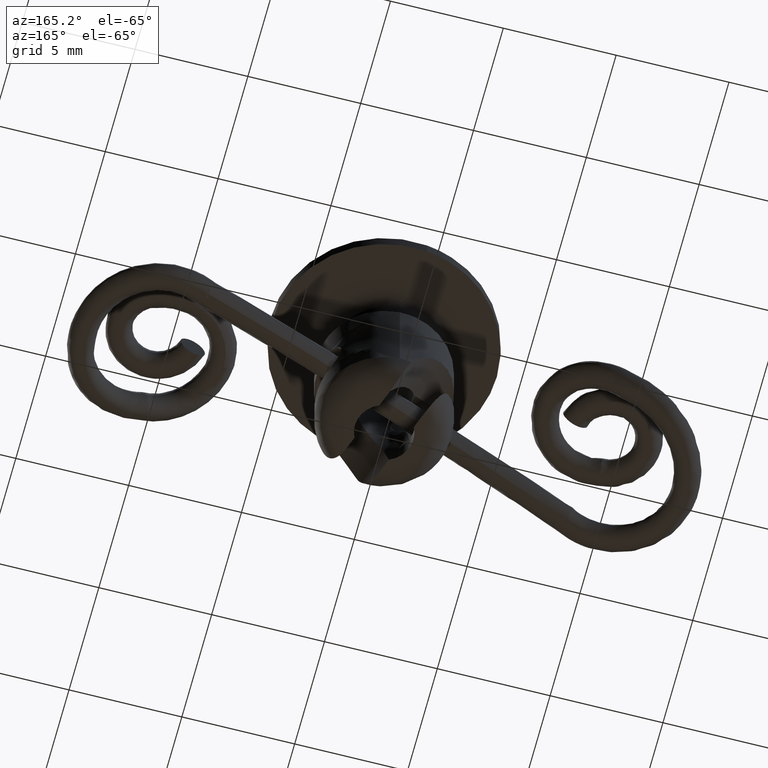
[diagram: clean part render]
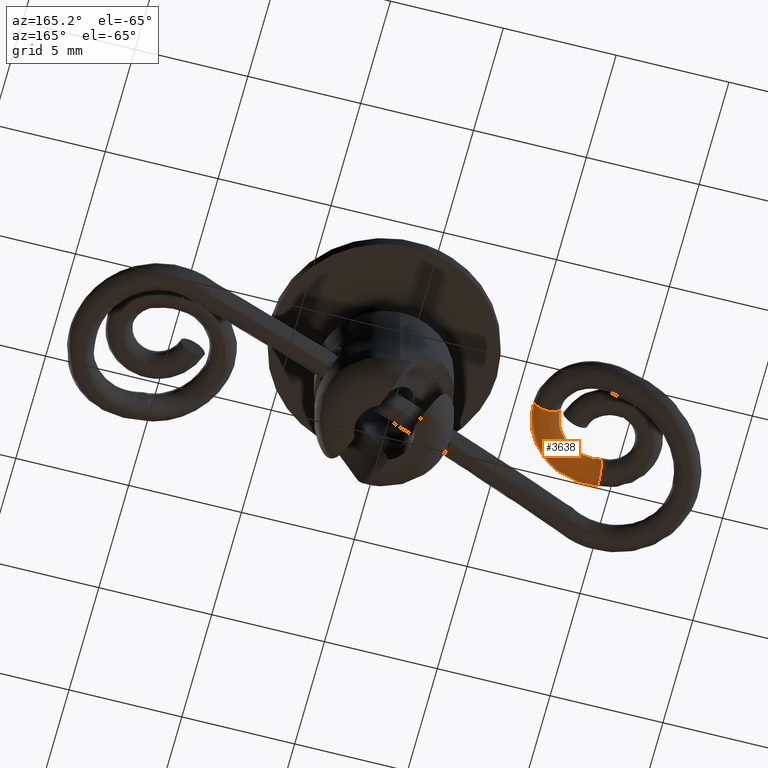
[diagram: same view with one face highlighted and labeled with its STEP entity id]
A machine part, auxiliary view. The second image highlights one B-rep face of the part: STEP entity #3638.
In plain terms, the highlighted face is a freeform B-spline surface patch.
Its self-contained STEP definition (entity closure, byte-faithful):
#3071=CARTESIAN_POINT('',(-10.043242120127619,-2.130392452698018,2.204339878628157));
#3072=VERTEX_POINT('',#3071);
#3073=CARTESIAN_POINT('',(-9.999998837097511,-1.700088375626410,1.200006937507510));
#3074=VERTEX_POINT('',#3073);
#3075=CARTESIAN_POINT('',(-10.043242120127619,-2.130392452698018,2.204339878628157));
#3076=CARTESIAN_POINT('',(-10.045545232305949,-2.152907324915941,2.180463862865568));
#3077=CARTESIAN_POINT('',(-10.047653391795460,-2.173466358939633,2.155104919220127));
#3078=CARTESIAN_POINT('',(-10.051837398571990,-2.214214925261329,2.096338908657430));
#3079=CARTESIAN_POINT('',(-10.053845583610260,-2.233732681942144,2.061942472263108));
#3080=CARTESIAN_POINT('',(-10.057119734588269,-2.265528859521091,1.990555876470845));
#3081=CARTESIAN_POINT('',(-10.058393168655750,-2.277880238889656,1.953627219705041));
#3082=CARTESIAN_POINT('',(-10.059699678639570,-2.290552073840912,1.896194673041867));
#3083=CARTESIAN_POINT('',(-10.060032682000640,-2.293781588385906,1.876665178462144));
#3084=CARTESIAN_POINT('',(-10.060470322932369,-2.298027663606091,1.837872855098563));
#3085=CARTESIAN_POINT('',(-10.060578245796160,-2.299076079571417,1.818492420432414));
#3086=CARTESIAN_POINT('',(-10.060567197705691,-2.298978113510738,1.760398580844292));
#3087=CARTESIAN_POINT('',(-10.060111221824220,-2.294568228502458,1.721517013265020));
#3088=CARTESIAN_POINT('',(-10.058340267778380,-2.277416103922451,1.644795557748384));
#3089=CARTESIAN_POINT('',(-10.057057370917571,-2.264984489423510,1.608056736984975));
#3090=CARTESIAN_POINT('',(-10.054613737151010,-2.241270725134839,1.555079627524320));
#3091=CARTESIAN_POINT('',(-10.053711787683710,-2.232513266159999,1.537779344696303));
#3092=CARTESIAN_POINT('',(-10.051736780529961,-2.213321005704326,1.503884306504155));
#3093=CARTESIAN_POINT('',(-10.050657322931769,-2.202823896500072,1.487205672045881));
#3094=CARTESIAN_POINT('',(-10.047217616879800,-2.169340100989766,1.439025682461910));
#3095=CARTESIAN_POINT('',(-10.044660683136010,-2.144407817740162,1.409300907142689));
#3096=CARTESIAN_POINT('',(-10.039053783715810,-2.089566827912970,1.354417763495271));
#3097=CARTESIAN_POINT('',(-10.035971525111460,-2.059340163799514,1.329066616063382));
#3098=CARTESIAN_POINT('',(-10.029480374143480,-1.995413161915260,1.284657922064973));
#3099=CARTESIAN_POINT('',(-10.026071404722130,-1.961714201399675,1.265492306075221));
#3100=CARTESIAN_POINT('',(-10.020704098198481,-1.908373376937416,1.241631664235709));
#3101=CARTESIAN_POINT('',(-10.018863373997780,-1.890034116270065,1.234476744461605));
#3102=CARTESIAN_POINT('',(-10.015164940196231,-1.853082446301886,1.222179436253916));
#3103=CARTESIAN_POINT('',(-10.011438080354861,-1.815744739788743,1.211824790051895));
#3104=CARTESIAN_POINT('',(-10.007654382245510,-1.777619381923054,1.205433286225611));
#3105=CARTESIAN_POINT('',(-10.003840831481339,-1.739080872391036,1.201120613466686));
#3106=CARTESIAN_POINT('',(-10.001900647963261,-1.719407479487515,1.200010210430974));
#3107=CARTESIAN_POINT('',(-9.999998837097511,-1.700088375626410,1.200006937507510));
#3108=B_SPLINE_CURVE_WITH_KNOTS('',3,(#3075,#3076,#3077,#3078,#3079,#3080,#3081,#3082,#3083,#3084,#3085,#3086,#3087,#3088,#3089,#3090,#3091,#3092,#3093,#3094,#3095,#3096,#3097,#3098,#3099,#3100,#3101,#3102,#3103,#3104,#3105,#3106,#3107),.UNSPECIFIED.,.F.,.U.,(4,2,2,2,2,2,2,2,2,2,2,2,2,2,1,2,4),(0.260085928940815,0.312499999999999,0.374999999999999,0.437499999999999,0.468749999999999,0.499999999999999,0.562499999999999,0.624999999999999,0.656249999999999,0.687499999999999,0.749999999999999,0.812499999999999,0.875000000000000,0.906250000000000,0.937500000000000,0.968750000000000,1.0),.UNSPECIFIED.);
#3109=EDGE_CURVE('',#3072,#3074,#3108,.T.);
#3153=CARTESIAN_POINT('',(-9.940976489279821,-1.100005277760007,1.800004965369043));
#3154=VERTEX_POINT('',#3153);
#3176=CARTESIAN_POINT('',(-9.940976489279821,-1.100005277760007,1.800004965369043));
#3177=CARTESIAN_POINT('',(-9.940976793164770,-1.100005277902401,1.799648798642329));
#3178=CARTESIAN_POINT('',(-9.940976823405311,-1.100005645726028,1.799292636531508));
#3179=CARTESIAN_POINT('',(-9.940984105256181,-1.100086307182981,1.760186044383925));
#3180=CARTESIAN_POINT('',(-9.941420881029073,-1.104533440302099,1.721256898987769));
#3181=CARTESIAN_POINT('',(-9.943115485060693,-1.121774799605418,1.644531965016536));
#3182=CARTESIAN_POINT('',(-9.944343060623050,-1.134261280690186,1.607793893641985));
#3183=CARTESIAN_POINT('',(-9.946683915608361,-1.158068643890093,1.554820393434147));
#3184=CARTESIAN_POINT('',(-9.947548285861510,-1.166859209616564,1.537521734694128));
#3185=CARTESIAN_POINT('',(-9.949442362662452,-1.186121049568303,1.503630645072503));
#3186=CARTESIAN_POINT('',(-9.950478224809537,-1.196654918315031,1.486954714867675));
#3187=CARTESIAN_POINT('',(-9.953780521444418,-1.230235559402496,1.438803814616513));
#3188=CARTESIAN_POINT('',(-9.956238765481588,-1.255231908436489,1.409099615727053));
#3189=CARTESIAN_POINT('',(-9.961644425843952,-1.310195995190908,1.354257063836326));
#3190=CARTESIAN_POINT('',(-9.964623080898452,-1.340481333278681,1.328927167570852));
#3191=CARTESIAN_POINT('',(-9.970920496706878,-1.404506741655589,1.284560290397922));
#3192=CARTESIAN_POINT('',(-9.974239593443024,-1.438250257677820,1.265411862638392));
#3193=CARTESIAN_POINT('',(-9.979492461361190,-1.491650305763647,1.241572387426188));
#3194=CARTESIAN_POINT('',(-9.981298249548399,-1.510007236408447,1.234424158415998));
#3195=CARTESIAN_POINT('',(-9.984936427206808,-1.546990393547990,1.222138865138683));
#3196=CARTESIAN_POINT('',(-9.988612511607496,-1.584357785212893,1.211794345766566));
#3197=CARTESIAN_POINT('',(-9.992365990354124,-1.622509542973230,1.205411676566766));
#3198=CARTESIAN_POINT('',(-9.996160096839565,-1.661073038401601,1.201108703800178));
#3199=CARTESIAN_POINT('',(-9.998096940010591,-1.680758522762261,1.200003658182397));
#3200=CARTESIAN_POINT('',(-9.999998837097511,-1.700088375626410,1.200006937507510));
#3201=B_SPLINE_CURVE_WITH_KNOTS('',3,(#3176,#3177,#3178,#3179,#3180,#3181,#3182,#3183,#3184,#3185,#3186,#3187,#3188,#3189,#3190,#3191,#3192,#3193,#3194,#3195,#3196,#3197,#3198,#3199,#3200),.UNSPECIFIED.,.F.,.U.,(4,2,2,2,2,2,2,2,2,2,1,2,4),(0.499425559426463,0.500000000000001,0.562500000000000,0.625000000000000,0.656250000000000,0.687500000000000,0.750000000000000,0.812500000000000,0.875000000000000,0.906250000000000,0.937500000000000,0.968750000000000,1.0),.UNSPECIFIED.);
#3202=EDGE_CURVE('',#3154,#3074,#3201,.T.);
#3310=CARTESIAN_POINT('',(-10.034692002810701,-2.046577434667483,2.279282438095123));
#3311=VERTEX_POINT('',#3310);
#3312=CARTESIAN_POINT('',(-10.034692002810701,-2.046577434667483,2.279282438095123));
#3313=CARTESIAN_POINT('',(-10.037216368807810,-2.071401935601258,2.260662500094741));
#3314=CARTESIAN_POINT('',(-10.039617552619781,-2.094941379229051,2.240229608239389));
#3315=CARTESIAN_POINT('',(-10.042348345902489,-2.121655047073026,2.213473726232549));
#3316=CARTESIAN_POINT('',(-10.042798842493561,-2.126059960791566,2.208934257792967));
#3317=CARTESIAN_POINT('',(-10.043242120127619,-2.130392452698018,2.204339878628157));
#3318=B_SPLINE_CURVE_WITH_KNOTS('',3,(#3312,#3313,#3314,#3315,#3316,#3317),.UNSPECIFIED.,.F.,.U.,(4,2,4),(0.199907390315359,0.249999999999999,0.260085928940814),.UNSPECIFIED.);
#3319=EDGE_CURVE('',#3311,#3072,#3318,.T.);
#3382=CARTESIAN_POINT('',(-10.155676577120730,-2.022773778371675,2.279277170267766));
#3383=CARTESIAN_POINT('',(-10.185257215230870,-2.170011936162939,2.166795618759455));
#3384=CARTESIAN_POINT('',(-10.205522263138640,-2.270898845719235,1.988494972802364));
#3385=CARTESIAN_POINT('',(-10.205505374790700,-2.270900534960175,1.485841794730230));
#3386=CARTESIAN_POINT('',(-10.149187330709360,-1.990661744590919,1.200002945961219));
#3387=CARTESIAN_POINT('',(-10.025413381792280,-1.374654971436439,1.200005033247963));
#3388=CARTESIAN_POINT('',(-9.969114545236829,-1.094414259852652,1.485845781154257));
#3389=CARTESIAN_POINT('',(-9.969125100454294,-1.094413204077077,1.800004017449346));
#3390=CARTESIAN_POINT('',(-10.127396141692071,-2.028392582617853,2.279278123102611));
#3391=CARTESIAN_POINT('',(-10.157334180652271,-2.175559773226396,2.166796559563441));
#3392=CARTESIAN_POINT('',(-10.177844054389110,-2.276398069022103,1.988495905365004));
#3393=CARTESIAN_POINT('',(-10.177826854374830,-2.276399820148785,1.485842727303356));
#3394=CARTESIAN_POINT('',(-10.120828254219440,-1.996296164173259,1.200003901443288));
#3395=CARTESIAN_POINT('',(-9.995558735979877,-1.380586358251228,1.200006039074028));
#3396=CARTESIAN_POINT('',(-9.938579697816047,-1.100480710677021,1.485846809877332));
#3397=CARTESIAN_POINT('',(-9.938590447824973,-1.100479616222860,1.800005046165860));
#3398=CARTESIAN_POINT('',(-10.098743851580529,-2.034084238911790,2.279279088199957));
#3399=CARTESIAN_POINT('',(-10.128878469507139,-2.181212357467406,2.166797518033589));
#3400=CARTESIAN_POINT('',(-10.149523003271860,-2.282023888223962,1.988496859295407));
#3401=CARTESIAN_POINT('',(-10.149505631833719,-2.282025673422974,1.485843681239534));
#3402=CARTESIAN_POINT('',(-10.092132709654230,-2.001996417726510,1.200004867998855));
#3403=CARTESIAN_POINT('',(-9.966040592723159,-1.386450111593993,1.200007033361584));
#3404=CARTESIAN_POINT('',(-9.908687427499729,-1.106418825547564,1.485847816777706));
#3405=CARTESIAN_POINT('',(-9.908698284648564,-1.106417709798196,1.800006053062620));
#3406=CARTESIAN_POINT('',(-9.871701061479305,-2.079163176441099,2.279286729968126));
#3407=CARTESIAN_POINT('',(-9.895451229881060,-2.227558302277457,2.166805374529683));
#3408=CARTESIAN_POINT('',(-9.911722304131791,-2.329237755167924,1.988504862883868));
#3409=CARTESIAN_POINT('',(-9.911710500163039,-2.329238435498260,1.485851684640760));
#3410=CARTESIAN_POINT('',(-9.866494728429840,-2.046796568029670,1.200012462519136));
#3411=CARTESIAN_POINT('',(-9.767118795438689,-1.425948379661112,1.200013729337478));
#3412=CARTESIAN_POINT('',(-9.721916448644121,-1.143505738436502,1.485854104085604));
#3413=CARTESIAN_POINT('',(-9.721923826124591,-1.143505313229962,1.800012340487587));
#3414=CARTESIAN_POINT('',(-9.646584685177931,-2.099540670112253,2.279288014400130));
#3415=CARTESIAN_POINT('',(-9.653610578293346,-2.249972709857968,2.166806889719048));
#3416=CARTESIAN_POINT('',(-9.658425231660395,-2.353047484381916,1.988506536146071));
#3417=CARTESIAN_POINT('',(-9.658428011859179,-2.353046388468860,1.485853357701732));
#3418=CARTESIAN_POINT('',(-9.645058295132088,-2.066725867307840,1.200013696176210));
#3419=CARTESIAN_POINT('',(-9.615666283709080,-1.437354067569366,1.200013997374008));
#3420=CARTESIAN_POINT('',(-9.602293404994709,-1.151034792816688,1.485853932947136));
#3421=CARTESIAN_POINT('',(-9.602291667370391,-1.151035477762307,1.800012169474848));
#3422=CARTESIAN_POINT('',(-9.223081359323407,-2.087807683183580,2.279277475617142));
#3423=CARTESIAN_POINT('',(-9.207743239919431,-2.237620161487405,2.166795794419071));
#3424=CARTESIAN_POINT('',(-9.197238153824241,-2.340270525599741,1.988495059622236));
#3425=CARTESIAN_POINT('',(-9.197260436240281,-2.340269969990825,1.485841881663198));
#3426=CARTESIAN_POINT('',(-9.226475857618741,-2.055129206267750,1.200003279847070));
#3427=CARTESIAN_POINT('',(-9.290667650052461,-1.428350005550726,1.200005909829868));
#3428=CARTESIAN_POINT('',(-9.319857729101180,-1.143209873735126,1.485846904560368));
#3429=CARTESIAN_POINT('',(-9.319843802591235,-1.143210220990739,1.800005140784766));
#3430=CARTESIAN_POINT('',(-9.012027722392958,-2.058178584455028,2.279266070050288));
#3431=CARTESIAN_POINT('',(-8.985544456138072,-2.206426446077559,2.166783786559649));
#3432=CARTESIAN_POINT('',(-8.967404749650699,-2.308005020418672,1.988482639181881));
#3433=CARTESIAN_POINT('',(-8.967436751031141,-2.308005829223580,1.485829461748022));
#3434=CARTESIAN_POINT('',(-9.017874554458240,-2.025844379595835,1.199992006806282));
#3435=CARTESIAN_POINT('',(-9.128704007996779,-1.405612428874208,1.199997157125344));
#3436=CARTESIAN_POINT('',(-9.179105415481171,-1.123450059373160,1.485839298132896));
#3437=CARTESIAN_POINT('',(-9.179085414618395,-1.123449553870173,1.799997534029026));
#3438=CARTESIAN_POINT('',(-8.396735900674702,-1.900310975029111,2.279214321360631));
#3439=CARTESIAN_POINT('',(-8.337760805907809,-2.040222330496535,2.166729305177110));
#3440=CARTESIAN_POINT('',(-8.297363628983906,-2.136090252420069,1.988426285856939));
#3441=CARTESIAN_POINT('',(-8.297423964390001,-2.136098330991485,1.485773110806236));
#3442=CARTESIAN_POINT('',(-8.409732105401229,-1.869811101896440,1.199940859407436));
#3443=CARTESIAN_POINT('',(-8.656525930432741,-1.284463855203092,1.199957444874296));
#3444=CARTESIAN_POINT('',(-8.768765450529790,-1.018167438153586,1.485804786714592));
#3445=CARTESIAN_POINT('',(-8.768727740900980,-1.018162389046289,1.799963021121341));
#3446=CARTESIAN_POINT('',(-8.011883107258116,-1.702719874785868,2.279156376785787));
#3447=CARTESIAN_POINT('',(-7.932585014481510,-1.832197025723228,2.166668300718873));
#3448=CARTESIAN_POINT('',(-7.878266228705870,-1.920917335175310,1.988363185325121));
#3449=CARTESIAN_POINT('',(-7.878344286480750,-1.920934512768090,1.485710012942746));
#3450=CARTESIAN_POINT('',(-8.029351103589560,-1.674515902555880,1.199883588117350));
#3451=CARTESIAN_POINT('',(-8.361187961827092,-1.132831328192670,1.199912977884488));
#3452=CARTESIAN_POINT('',(-8.512106001943250,-0.886393181489596,1.485766143263324));
#3453=CARTESIAN_POINT('',(-8.512057215833945,-0.886382445494028,1.799924376002407));
#3454=CARTESIAN_POINT('',(-7.362743430589450,-1.158749562035644,2.279004124889980));
#3455=CARTESIAN_POINT('',(-7.249166077660497,-1.259501217930362,2.166508008840533));
#3456=CARTESIAN_POINT('',(-7.171365399528808,-1.328544061211094,1.988197385918197));
#3457=CARTESIAN_POINT('',(-7.171473350011840,-1.328586288498852,1.485544220546806));
#3458=CARTESIAN_POINT('',(-7.387754098880681,-1.136866233536302,1.199733105307088));
#3459=CARTESIAN_POINT('',(-7.863034963645179,-0.715385539948958,1.199796138954002));
#3460=CARTESIAN_POINT('',(-8.079192937823519,-0.523617458872220,1.485664605944676));
#3461=CARTESIAN_POINT('',(-8.079125468771625,-0.523591066817451,1.799822834301693));
#3462=CARTESIAN_POINT('',(-7.100874877745143,-0.814396877861892,2.278910384773786));
#3463=CARTESIAN_POINT('',(-6.973468967973748,-0.896964258329986,2.166409318577684));
#3464=CARTESIAN_POINT('',(-6.886195486700425,-0.953550555115140,1.988095304718389));
#3465=CARTESIAN_POINT('',(-6.886315496158960,-0.953608639755735,1.485442143663884));
#3466=CARTESIAN_POINT('',(-7.128928326625160,-0.796514745017063,1.199640454401672));
#3467=CARTESIAN_POINT('',(-7.662075772784971,-0.451127447624241,1.199724202289846));
#3468=CARTESIAN_POINT('',(-7.904552113596520,-0.293967491821284,1.485602090348510));
#3469=CARTESIAN_POINT('',(-7.904477107684859,-0.293931188920912,1.799760316007558));
#3470=CARTESIAN_POINT('',(-6.837805374204875,-0.236209517946519,2.278756118977015));
#3471=CARTESIAN_POINT('',(-6.696507475319811,-0.288244475738055,2.166246906444216));
#3472=CARTESIAN_POINT('',(-6.599717738687672,-0.323915529336025,1.987927312201891));
#3473=CARTESIAN_POINT('',(-6.599849862423559,-0.324000239354926,1.485274158251152));
#3474=CARTESIAN_POINT('',(-6.868915561029130,-0.225045617951711,1.199487981092320));
#3475=CARTESIAN_POINT('',(-7.460195025428940,-0.007423418745366,1.199605817907032));
#3476=CARTESIAN_POINT('',(-7.729110456519210,0.091627545407787,1.485499209989574));
#3477=CARTESIAN_POINT('',(-7.729027879184320,0.091680489169601,1.799657431208795));
#3478=CARTESIAN_POINT('',(-6.771712440369957,-0.033593520287082,2.278702521444603));
#3479=CARTESIAN_POINT('',(-6.626924349069047,-0.074928904585246,2.166190478578626));
#3480=CARTESIAN_POINT('',(-6.527743769626854,-0.103270563329987,1.987868945508617));
#3481=CARTESIAN_POINT('',(-6.527878936923510,-0.103364603762919,1.485215794026006));
#3482=CARTESIAN_POINT('',(-6.803590595222460,-0.024783911885340,1.199435006335184));
#3483=CARTESIAN_POINT('',(-7.409475018457161,0.148065159673430,1.199564686880786));
#3484=CARTESIAN_POINT('',(-7.685032947725750,0.226752806006129,1.485463465624284));
#3485=CARTESIAN_POINT('',(-7.684948468165301,0.226811581276752,1.799621685300887));
#3486=CARTESIAN_POINT('',(-6.686074724722939,0.381326833404898,2.278593644188544));
#3487=CARTESIAN_POINT('',(-6.536764324178688,0.361902213554994,2.166075851823677));
#3488=CARTESIAN_POINT('',(-6.434485883857401,0.348569811420648,1.987750380246415));
#3489=CARTESIAN_POINT('',(-6.434624994745320,0.348456664013519,1.485097233777712));
#3490=CARTESIAN_POINT('',(-6.718947950457310,0.385315284355589,1.199327394176014));
#3491=CARTESIAN_POINT('',(-7.343756298919860,0.466477200900535,1.199481133909184));
#3492=CARTESIAN_POINT('',(-7.627921040460071,0.503464506520829,1.485390855039502));
#3493=CARTESIAN_POINT('',(-7.627834096155160,0.503535223650244,1.799549071582471));
#3494=CARTESIAN_POINT('',(-6.666757184419272,0.606536637021433,2.278535029223909));
#3495=CARTESIAN_POINT('',(-6.516526586897658,0.603934728624065,2.166012867702908));
#3496=CARTESIAN_POINT('',(-6.413617795559658,0.602126177867967,1.987684403177326));
#3497=CARTESIAN_POINT('',(-6.413757708873930,0.601998360454597,1.485031260518632));
#3498=CARTESIAN_POINT('',(-6.699832886595390,0.606823485468726,1.199269740583066));
#3499=CARTESIAN_POINT('',(-7.328491864857861,0.617589567295544,1.199441763361440));
#3500=CARTESIAN_POINT('',(-7.614407915788890,0.622560062140246,1.485359799824648));
#3501=CARTESIAN_POINT('',(-7.614320469967510,0.622639948023602,1.799518013986322));
#3502=CARTESIAN_POINT('',(-6.671023494679982,0.818137090543968,2.278480353477286));
#3503=CARTESIAN_POINT('',(-6.520912299666495,0.821485294859675,2.165956654488089));
#3504=CARTESIAN_POINT('',(-6.418085301132206,0.823752675310303,1.987627136769935));
#3505=CARTESIAN_POINT('',(-6.418225110316632,0.823619669186257,1.484973995451950));
#3506=CARTESIAN_POINT('',(-6.704072923988965,0.817114699861889,1.199215403134865));
#3507=CARTESIAN_POINT('',(-7.332232253942588,0.802982111086309,1.199393859558502));
#3508=CARTESIAN_POINT('',(-7.617921059253571,0.796628412838434,1.485314822115328));
#3509=CARTESIAN_POINT('',(-7.617833678513298,0.796711541665962,1.799473035439070));
#3510=CARTESIAN_POINT('',(-6.671256730499220,0.829685947020387,2.278477369358440));
#3511=CARTESIAN_POINT('',(-6.521149158387589,0.833215111006000,2.165953623610358));
#3512=CARTESIAN_POINT('',(-6.418324641604345,0.835606451993393,1.987624073861552));
#3513=CARTESIAN_POINT('',(-6.418464447629225,0.835473288066056,1.484970932584342));
#3514=CARTESIAN_POINT('',(-6.704305362638758,0.828623738692478,1.199212429304659));
#3515=CARTESIAN_POINT('',(-7.332449532301201,0.813733911284532,1.199391081394178));
#3516=CARTESIAN_POINT('',(-7.618131442542800,0.807035812460940,1.485312132942030));
#3517=CARTESIAN_POINT('',(-7.618044063777242,0.807119039915525,1.799470346240288));
#3518=CARTESIAN_POINT('',(-6.671485377640488,0.840992714783100,2.278474447798424));
#3519=CARTESIAN_POINT('',(-6.521379322245741,0.844598092687956,2.165950682356966));
#3520=CARTESIAN_POINT('',(-6.418555844440041,0.847041641542126,1.987621119117853));
#3521=CARTESIAN_POINT('',(-6.418695649142135,0.846908411153533,1.484967977857815));
#3522=CARTESIAN_POINT('',(-6.704533676047344,0.839913736647614,1.199209512077897));
#3523=CARTESIAN_POINT('',(-7.332671498899781,0.824704986664237,1.199388246575758));
#3524=CARTESIAN_POINT('',(-7.618350522541483,0.817861838296295,1.485309335603841));
#3525=CARTESIAN_POINT('',(-7.618263144602665,0.817945107289165,1.799467548891366));
#3526=B_SPLINE_SURFACE_WITH_KNOTS('',3,3,((#3382,#3390,#3398,#3406,#3414,#3422,#3430,#3438,#3446,#3454,#3462,#3470,#3478,#3486,#3494,#3502,#3510,#3518),(#3383,#3391,#3399,#3407,#3415,#3423,#3431,#3439,#3447,#3455,#3463,#3471,#3479,#3487,#3495,#3503,#3511,#3519),(#3384,#3392,#3400,#3408,#3416,#3424,#3432,#3440,#3448,#3456,#3464,#3472,#3480,#3488,#3496,#3504,#3512,#3520),(#3385,#3393,#3401,#3409,#3417,#3425,#3433,#3441,#3449,#3457,#3465,#3473,#3481,#3489,#3497,#3505,#3513,#3521),(#3386,#3394,#3402,#3410,#3418,#3426,#3434,#3442,#3450,#3458,#3466,#3474,#3482,#3490,#3498,#3506,#3514,#3522),(#3387,#3395,#3403,#3411,#3419,#3427,#3435,#3443,#3451,#3459,#3467,#3475,#3483,#3491,#3499,#3507,#3515,#3523),(#3388,#3396,#3404,#3412,#3420,#3428,#3436,#3444,#3452,#3460,#3468,#3476,#3484,#3492,#3500,#3508,#3516,#3524),(#3389,#3397,#3405,#3413,#3421,#3429,#3437,#3445,#3453,#3461,#3469,#3477,#3485,#3493,#3501,#3509,#3517,#3525)),.UNSPECIFIED.,.F.,.F.,.U.,(4,2,2,4),(4,2,2,2,2,2,2,2,4),(0.0,0.565484825653743,1.507959535076648,2.450434244499553),(0.0,0.112203585543314,0.818335763384914,1.524467941226515,2.936732296909715,4.348996652592916,5.055128830434517,5.761261008276117,5.803354932925985),.UNSPECIFIED.);
#3527=CARTESIAN_POINT('',(-6.605289316538620,0.807262198569539,1.376300531813664));
#3528=VERTEX_POINT('',#3527);
#3529=CARTESIAN_POINT('',(-6.670912394759233,0.812668283100493,2.278481704846800));
#3530=VERTEX_POINT('',#3529);
#3531=CARTESIAN_POINT('',(-6.605289316538620,0.807262198569539,1.376300531813664));
#3532=CARTESIAN_POINT('',(-6.591396838444335,0.807762606887379,1.389892575055373));
#3533=CARTESIAN_POINT('',(-6.578141332895458,0.808249706745303,1.404055340282886));
#3534=CARTESIAN_POINT('',(-6.552902815900679,0.809197319857241,1.433521014636761));
#3535=CARTESIAN_POINT('',(-6.540820276615131,0.809661075974687,1.448949753504306));
#3536=CARTESIAN_POINT('',(-6.506688144954414,0.811004742987507,1.496892259296926));
#3537=CARTESIAN_POINT('',(-6.486812298570261,0.811836736127855,1.530964281030515));
#3538=CARTESIAN_POINT('',(-6.454017128664402,0.813330071341238,1.602183295271843));
#3539=CARTESIAN_POINT('',(-6.441241225207798,0.813983997932341,1.638907047653126));
#3540=CARTESIAN_POINT('',(-6.423430316759922,0.815093566145256,1.714736115567024));
#3541=CARTESIAN_POINT('',(-6.418476200080240,0.815550227752602,1.754251048527844));
#3542=CARTESIAN_POINT('',(-6.417558486930605,0.816199712836373,1.831878880060618));
#3543=CARTESIAN_POINT('',(-6.421437147167791,0.816400146150842,1.870392060308741));
#3544=CARTESIAN_POINT('',(-6.433463090498796,0.816522871267698,1.927731411213997));
#3545=CARTESIAN_POINT('',(-6.438553268728096,0.816533567414736,1.946867144179544));
#3546=CARTESIAN_POINT('',(-6.450516500500512,0.816496343885560,1.984078970346466));
#3547=CARTESIAN_POINT('',(-6.457399169828618,0.816448932287517,2.002251936578754));
#3548=CARTESIAN_POINT('',(-6.480570086761506,0.816226061281803,2.055558603653906));
#3549=CARTESIAN_POINT('',(-6.499354702150074,0.815970813851190,2.089492825629265));
#3550=CARTESIAN_POINT('',(-6.532353748151082,0.815433828933623,2.138077178518806));
#3551=CARTESIAN_POINT('',(-6.544169725015697,0.815228667130447,2.153869996995844));
#3552=CARTESIAN_POINT('',(-6.568924513338535,0.814775537706561,2.184054425205670));
#3553=CARTESIAN_POINT('',(-6.581918323002269,0.814526711283411,2.198531511838207));
#3554=CARTESIAN_POINT('',(-6.618846335694029,0.813791764995242,2.236215036707448));
#3555=CARTESIAN_POINT('',(-6.644010700548195,0.813262234168481,2.258320160549518));
#3556=CARTESIAN_POINT('',(-6.670912394759233,0.812668283100493,2.278481704846800));
#3557=B_SPLINE_CURVE_WITH_KNOTS('',3,(#3531,#3532,#3533,#3534,#3535,#3536,#3537,#3538,#3539,#3540,#3541,#3542,#3543,#3544,#3545,#3546,#3547,#3548,#3549,#3550,#3551,#3552,#3553,#3554,#3555,#3556),.UNSPECIFIED.,.F.,.U.,(4,2,2,2,2,2,2,2,2,2,2,2,4),(0.0,0.031250000000000,0.062500000000000,0.124999999999999,0.187499999999999,0.249999999999999,0.312499999999999,0.343749999999999,0.374999999999998,0.437499999999998,0.468749999999997,0.499999999999997,0.553621769460640),.UNSPECIFIED.);
#3558=EDGE_CURVE('',#3528,#3530,#3557,.T.);
#3559=ORIENTED_EDGE('',*,*,#3558,.T.);
#3560=CARTESIAN_POINT('',(-10.034692002810701,-2.046577434667483,2.279282438095123));
#3561=CARTESIAN_POINT('',(-9.846724596246009,-2.081347654160749,2.279288068847281));
#3562=CARTESIAN_POINT('',(-9.634818486164059,-2.099215553891218,2.279288893357840));
#3563=CARTESIAN_POINT('',(-9.223081389868820,-2.087808479311882,2.279278551802203));
#3564=CARTESIAN_POINT('',(-9.012027710331516,-2.058179342270248,2.279267092660099));
#3565=CARTESIAN_POINT('',(-8.396735753440538,-1.900311611293858,2.279215173999859));
#3566=CARTESIAN_POINT('',(-8.011882860322338,-1.702720421396591,2.279157104056958));
#3567=CARTESIAN_POINT('',(-7.362742983185361,-1.158749928380574,2.279004600085771));
#3568=CARTESIAN_POINT('',(-7.100874330321194,-0.814397154266623,2.278910734201345));
#3569=CARTESIAN_POINT('',(-6.837804690696756,-0.236209671981184,2.278756297287910));
#3570=CARTESIAN_POINT('',(-6.771711713879868,-0.033593635671353,2.278702645708568));
#3571=CARTESIAN_POINT('',(-6.686073919178845,0.381326789107838,2.278593669047428));
#3572=CARTESIAN_POINT('',(-6.666756340865674,0.606536626903406,2.278535006288407));
#3573=CARTESIAN_POINT('',(-6.670826087007438,0.808389418942415,2.278482811273131));
#3574=CARTESIAN_POINT('',(-6.670869345619253,0.810534346491243,2.278482256638840));
#3575=CARTESIAN_POINT('',(-6.670912394759233,0.812668283100493,2.278481704846800));
#3576=B_SPLINE_CURVE_WITH_KNOTS('',3,(#3560,#3561,#3562,#3563,#3564,#3565,#3566,#3567,#3568,#3569,#3570,#3571,#3572,#3573,#3574,#3575),.UNSPECIFIED.,.F.,.U.,(4,2,2,2,2,2,2,4),(0.006945816507563,0.125000000000000,0.250000000000000,0.500000000000000,0.750000000000000,0.875000000000000,1.0,1.001349920740507),.UNSPECIFIED.);
#3577=EDGE_CURVE('',#3311,#3530,#3576,.T.);
#3578=ORIENTED_EDGE('',*,*,#3577,.F.);
#3579=ORIENTED_EDGE('',*,*,#3319,.T.);
#3580=ORIENTED_EDGE('',*,*,#3109,.T.);
#3581=ORIENTED_EDGE('',*,*,#3202,.F.);
#3582=CARTESIAN_POINT('',(-7.617545720581889,0.782225065154522,1.799475753536367));
#3583=VERTEX_POINT('',#3582);
#3584=CARTESIAN_POINT('',(-9.940976489279821,-1.100005277760007,1.800004965369043));
#3585=CARTESIAN_POINT('',(-9.920439991032534,-1.104084950563510,1.800005652560286));
#3586=CARTESIAN_POINT('',(-9.900746355156823,-1.107996654454092,1.800006311410383));
#3587=CARTESIAN_POINT('',(-9.721923530308096,-1.143505313498550,1.800012291197124));
#3588=CARTESIAN_POINT('',(-9.602291382664447,-1.151035478066429,1.800012089949965));
#3589=CARTESIAN_POINT('',(-9.319843546146812,-1.143210221385247,1.800004984353642));
#3590=CARTESIAN_POINT('',(-9.179085173515597,-1.123449554313747,1.799997335849735));
#3591=CARTESIAN_POINT('',(-8.768727548304041,-1.018162389644994,1.799962690946206));
#3592=CARTESIAN_POINT('',(-8.512057058802943,-0.886382446206479,1.799923949043996));
#3593=CARTESIAN_POINT('',(-8.079125382870439,-0.523591067757390,1.799822213782340));
#3594=CARTESIAN_POINT('',(-7.904477057082558,-0.293931189973743,1.799759599431638));
#3595=CARTESIAN_POINT('',(-7.729027876323054,0.091680487964084,1.799656584718298));
#3596=CARTESIAN_POINT('',(-7.684948480330887,0.226811580023177,1.799620797918791));
#3597=CARTESIAN_POINT('',(-7.628106811719988,0.502214085543901,1.799548456321340));
#3598=CARTESIAN_POINT('',(-7.614579959330534,0.620363667096074,1.799517616540916));
#3599=CARTESIAN_POINT('',(-7.617545720581889,0.782225065154522,1.799475753536367));
#3600=B_SPLINE_CURVE_WITH_KNOTS('',3,(#3584,#3585,#3586,#3587,#3588,#3589,#3590,#3591,#3592,#3593,#3594,#3595,#3596,#3597,#3598,#3599),.UNSPECIFIED.,.F.,.U.,(4,2,2,2,2,2,2,4),(-0.013695075964523,0.0,0.125000000000000,0.250000000000000,0.500000000000000,0.750000000000000,0.875000000000000,0.998806447514010),.UNSPECIFIED.);
#3601=EDGE_CURVE('',#3154,#3583,#3600,.T.);
#3602=ORIENTED_EDGE('',*,*,#3601,.T.);
#3603=CARTESIAN_POINT('',(-6.605289316538620,0.807262198569539,1.376300531813664));
#3604=CARTESIAN_POINT('',(-6.619159255489775,0.806758140313914,1.362730452234113));
#3605=CARTESIAN_POINT('',(-6.633587467404356,0.806243588525653,1.349804270967822));
#3606=CARTESIAN_POINT('',(-6.663564435806167,0.805193422723640,1.325244317001534));
#3607=CARTESIAN_POINT('',(-6.679309551749194,0.804651132495894,1.313465424848163));
#3608=CARTESIAN_POINT('',(-6.727895449682087,0.803004801999650,1.280483984300332));
#3609=CARTESIAN_POINT('',(-6.762390903629128,0.801871196134624,1.261399730140504));
#3610=CARTESIAN_POINT('',(-6.834212005528765,0.799583765886099,1.230364347351572));
#3611=CARTESIAN_POINT('',(-6.871175215682460,0.798440971098823,1.218509785253916));
#3612=CARTESIAN_POINT('',(-6.947360425462906,0.796158299271295,1.202660880268344));
#3613=CARTESIAN_POINT('',(-6.986923742515925,0.795009778493727,1.198775407713078));
#3614=CARTESIAN_POINT('',(-7.064365790228802,0.792835991780053,1.199964226985669));
#3615=CARTESIAN_POINT('',(-7.102703946609577,0.791795784400279,1.204849232346231));
#3616=CARTESIAN_POINT('',(-7.159663930246557,0.790302286079750,1.218309520841230));
#3617=CARTESIAN_POINT('',(-7.178633687521883,0.789813864618832,1.223862908114794));
#3618=CARTESIAN_POINT('',(-7.215467454992621,0.788882656808742,1.236695412160030));
#3619=CARTESIAN_POINT('',(-7.233441464428094,0.788436913801823,1.243991879933585));
#3620=CARTESIAN_POINT('',(-7.286120302154457,0.787155419148005,1.268352132364563));
#3621=CARTESIAN_POINT('',(-7.319595124424347,0.786374814817633,1.287860561930311));
#3622=CARTESIAN_POINT('',(-7.383358849898062,0.784956254670329,1.333209446626316));
#3623=CARTESIAN_POINT('',(-7.413141712703339,0.784330050119694,1.358749286168494));
#3624=CARTESIAN_POINT('',(-7.467434289180400,0.783262601178690,1.414218043784223));
#3625=CARTESIAN_POINT('',(-7.492259342596383,0.782814929599999,1.444441539801756));
#3626=CARTESIAN_POINT('',(-7.536297523992896,0.782114029538891,1.509318813638139));
#3627=CARTESIAN_POINT('',(-7.555134462545019,0.781866353117850,1.543365723193643));
#3628=CARTESIAN_POINT('',(-7.586122409670511,0.781586430058886,1.614838635515730));
#3629=CARTESIAN_POINT('',(-7.598268084494409,0.781556859223374,1.652570771218145));
#3630=CARTESIAN_POINT('',(-7.613654833569043,0.781732896095746,1.726336985261382));
#3631=CARTESIAN_POINT('',(-7.617553538040182,0.781922176092375,1.762618558598813));
#3632=CARTESIAN_POINT('',(-7.617545720581889,0.782225065154522,1.799475753536367));
#3633=B_SPLINE_CURVE_WITH_KNOTS('',3,(#3603,#3604,#3605,#3606,#3607,#3608,#3609,#3610,#3611,#3612,#3613,#3614,#3615,#3616,#3617,#3618,#3619,#3620,#3621,#3622,#3623,#3624,#3625,#3626,#3627,#3628,#3629,#3630,#3631,#3632),.UNSPECIFIED.,.F.,.U.,(4,2,2,2,2,2,2,2,2,2,2,2,2,2,4),(0.0,0.031250000000000,0.062499999999999,0.124999999999998,0.187499999999997,0.249999999999997,0.312499999999996,0.343749999999995,0.374999999999995,0.437499999999995,0.499999999999996,0.562499999999996,0.624999999999997,0.687499999999997,0.746296662370735),.UNSPECIFIED.);
#3634=EDGE_CURVE('',#3528,#3583,#3633,.T.);
#3635=ORIENTED_EDGE('',*,*,#3634,.F.);
#3636=EDGE_LOOP('',(#3559,#3578,#3579,#3580,#3581,#3602,#3635));
#3637=FACE_OUTER_BOUND('',#3636,.T.);
#3638=ADVANCED_FACE('',(#3637),#3526,.T.);